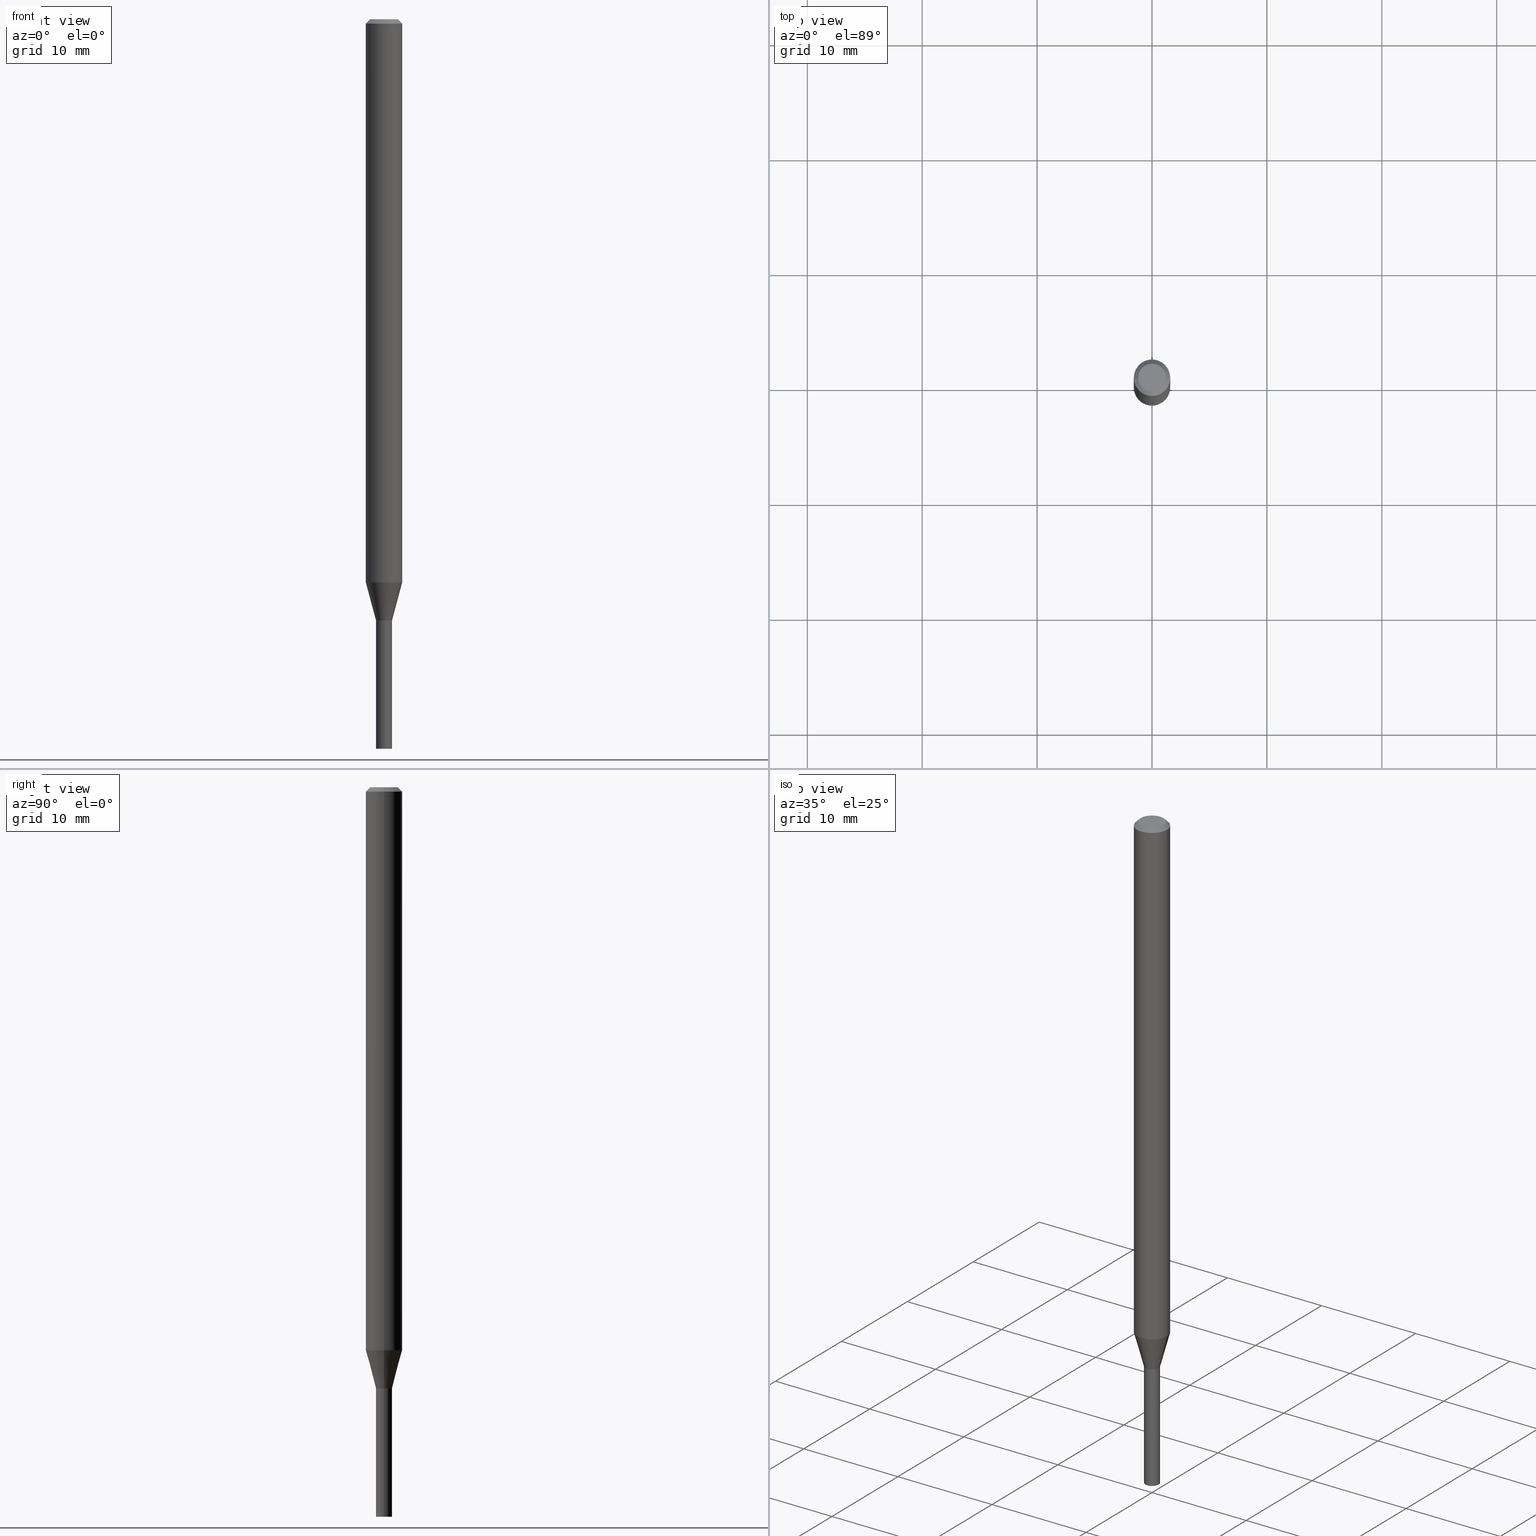
[diagram: canonical four-view strip — front | top / right | iso, engineering-drawing reading convention]
A machine part, canonical four-view strip (front | top / right | iso — engineering-drawing reading convention). The complete STEP part file that produces these views, byte-faithful:
ISO-10303-21;
HEADER;
FILE_DESCRIPTION (( 'STEP AP203' ),
    '1' );
FILE_NAME ('01266.STEP',
    '2024-03-20T00:46:00',
    ( '' ),
    ( '' ),
    'SwSTEP 2.0',
    'SolidWorks 2023',
    '' );
FILE_SCHEMA (( 'CONFIG_CONTROL_DESIGN' ));
ENDSEC;

DATA;
#1 = CIRCLE ( 'NONE', #59, 0.06250000000000000000 ) ;
#2 = VECTOR ( 'NONE', #380, 39.37007874015748854 ) ;
#3 = MECHANICAL_CONTEXT ( 'NONE', #54, 'mechanical' ) ;
#4 = ORIENTED_EDGE ( 'NONE', *, *, #236, .T. ) ;
#5 = EDGE_CURVE ( 'NONE', #119, #183, #333, .T. ) ;
#6 = VERTEX_POINT ( 'NONE', #157 ) ;
#7 = ADVANCED_FACE ( 'NONE', ( #159 ), #447, .T. ) ;
#8 = COORDINATED_UNIVERSAL_TIME_OFFSET ( 5, 0, .BEHIND. ) ;
#9 =( GEOMETRIC_REPRESENTATION_CONTEXT ( 3 ) GLOBAL_UNCERTAINTY_ASSIGNED_CONTEXT ( ( #31 ) ) GLOBAL_UNIT_ASSIGNED_CONTEXT ( ( #170, #98, #312 ) ) REPRESENTATION_CONTEXT ( 'NONE', 'WORKASPACE' ) );
#10 = CARTESIAN_POINT ( 'NONE',  ( 0.02750000000000000014, -1.920314736363723444E-16, 1.340948613343882413E-30 ) ) ;
#11 = LINE ( 'NONE', #269, #2 ) ;
#12 = DIRECTION ( 'NONE',  ( -2.445468806185136597E-29, 3.491481338843145583E-15, 1.000000000000000000 ) ) ;
#13 = EDGE_LOOP ( 'NONE', ( #294, #260, #41, #181 ) ) ;
#14 = CARTESIAN_POINT ( 'NONE',  ( -0.02750000000000000014, -7.765178200228343699E-15, -2.500000000000000000 ) ) ;
#15 = DIRECTION ( 'NONE',  ( -2.438088387897960049E-29, 3.491481338843145188E-15, 1.000000000000000000 ) ) ;
#16 = PERSON_AND_ORGANIZATION ( #432, #67 ) ;
#17 = AXIS2_PLACEMENT_3D ( 'NONE', #387, #247, #378 ) ;
#18 = APPROVAL_PERSON_ORGANIZATION ( #96, #381, #319 ) ;
#19 = ADVANCED_FACE ( 'NONE', ( #202 ), #384, .F. ) ;
#20 = LINE ( 'NONE', #446, #234 ) ;
#21 = DIRECTION ( 'NONE',  ( -2.445468806185136597E-29, 3.491481338843145583E-15, 1.000000000000000000 ) ) ;
#22 = FACE_OUTER_BOUND ( 'NONE', #153, .T. ) ;
#23 = FACE_OUTER_BOUND ( 'NONE', #221, .T. ) ;
#24 = CIRCLE ( 'NONE', #250, 0.02750000000000019790 ) ;
#25 = DIRECTION ( 'NONE',  ( 1.000000000000000000, -6.982962677686265133E-15, 0.000000000000000000 ) ) ;
#26 = CIRCLE ( 'NONE', #258, 0.06250000000000000000 ) ;
#27 = CARTESIAN_POINT ( 'NONE',  ( 3.668203209277705088E-31, -5.237222008264718399E-17, -0.01499999999999999944 ) ) ;
#28 = ADVANCED_FACE ( 'NONE', ( #316 ), #243, .F. ) ;
#29 = LINE ( 'NONE', #418, #206 ) ;
#30 = ORIENTED_EDGE ( 'NONE', *, *, #341, .T. ) ;
#31 = UNCERTAINTY_MEASURE_WITH_UNIT (LENGTH_MEASURE( 1.000000000000000082E-05 ), #170, 'distance_accuracy_value', 'NONE');
#32 = ORIENTED_EDGE ( 'NONE', *, *, #436, .F. ) ;
#33 = ORIENTED_EDGE ( 'NONE', *, *, #172, .T. ) ;
#34 = CIRCLE ( 'NONE', #84, 0.02750000000000020137 ) ;
#35 = CIRCLE ( 'NONE', #155, 0.02699999999999999969 ) ;
#36 = ORIENTED_EDGE ( 'NONE', *, *, #91, .F. ) ;
#37 = DIRECTION ( 'NONE',  ( 1.000000000000000000, -6.982962677686279332E-15, 0.000000000000000000 ) ) ;
#38 = ORIENTED_EDGE ( 'NONE', *, *, #73, .F. ) ;
#39 = EDGE_CURVE ( 'NONE', #407, #324, #347, .T. ) ;
#40 = CARTESIAN_POINT ( 'NONE',  ( -0.02750000000000019790, -6.995306565013429859E-15, -2.059500000000000330 ) ) ;
#41 = ORIENTED_EDGE ( 'NONE', *, *, #330, .T. ) ;
#42 = DIRECTION ( 'NONE',  ( 0.7071067811865454633, -7.319954787623246579E-15, -0.7071067811865493491 ) ) ;
#43 = AXIS2_PLACEMENT_3D ( 'NONE', #299, #226, #443 ) ;
#44 = DIRECTION ( 'NONE',  ( -2.445468806185136877E-29, 3.491481338843145188E-15, 1.000000000000000000 ) ) ;
#45 = CARTESIAN_POINT ( 'NONE',  ( -0.02699999999999999969, -6.997955792187541849E-15, -2.060000000000000497 ) ) ;
#46 = DIRECTION ( 'NONE',  ( 1.000000000000000000, -6.982962677686265922E-15, 4.876176775795935793E-29 ) ) ;
#47 = CARTESIAN_POINT ( 'NONE',  ( 0.02699999999999999969, -7.380991550314410545E-15, -2.060000000000000497 ) ) ;
#48 = PERSON_AND_ORGANIZATION_ROLE ( 'creator' ) ;
#49 = DIRECTION ( 'NONE',  ( -2.445468806185136597E-29, 3.491481338843145583E-15, 1.000000000000000000 ) ) ;
#50 = CIRCLE ( 'NONE', #17, 0.04749999999999999362 ) ;
#51 = AXIS2_PLACEMENT_3D ( 'NONE', #408, #371, #450 ) ;
#52 = CARTESIAN_POINT ( 'NONE',  ( 0.02750000000000000014, -7.384483031653253552E-15, -2.060000000000000053 ) ) ;
#53 = DIRECTION ( 'NONE',  ( 1.000000000000000000, -6.982962677686264344E-15, 0.000000000000000000 ) ) ;
#54 = APPLICATION_CONTEXT ( 'configuration controlled 3d designs of mechanical parts and assemblies' ) ;
#55 = CARTESIAN_POINT ( 'NONE',  ( 0.06250000000000000000, -7.172823224113832982E-15, -1.929378221735090548 ) ) ;
#56 = EDGE_CURVE ( 'NONE', #393, #268, #355, .T. ) ;
#57 = DIRECTION ( 'NONE',  ( 1.000000000000000000, -6.982962677686266711E-15, 0.000000000000000000 ) ) ;
#58 = DIRECTION ( 'NONE',  ( 1.000000000000000000, -6.982962677686265133E-15, 0.000000000000000000 ) ) ;
#59 = AXIS2_PLACEMENT_3D ( 'NONE', #173, #351, #131 ) ;
#60 = AXIS2_PLACEMENT_3D ( 'NONE', #167, #311, #454 ) ;
#61 = DIRECTION ( 'NONE',  ( -2.445468806185136597E-29, 3.491481338843145583E-15, 1.000000000000000000 ) ) ;
#62 = VECTOR ( 'NONE', #42, 39.37007874015748854 ) ;
#63 = CARTESIAN_POINT ( 'NONE',  ( 3.316907271900976096E-16, 0.04749999999999999362, -1.231061139556668131E-16 ) ) ;
#64 = EDGE_CURVE ( 'NONE', #324, #219, #24, .T. ) ;
#65 = DIRECTION ( 'NONE',  ( -2.445468806185136597E-29, 3.491481338843145583E-15, 1.000000000000000000 ) ) ;
#66 = ORIENTED_EDGE ( 'NONE', *, *, #315, .T. ) ;
#67 = ORGANIZATION ( 'UNSPECIFIED', 'UNSPECIFIED', '' ) ;
#68 = CARTESIAN_POINT ( 'NONE',  ( 5.037665740741382466E-29, -7.192451558016881849E-15, -2.060000000000000497 ) ) ;
#69 = ORIENTED_EDGE ( 'NONE', *, *, #178, .T. ) ;
#70 = EDGE_CURVE ( 'NONE', #145, #195, #50, .T. ) ;
#71 = PERSON_AND_ORGANIZATION ( #432, #67 ) ;
#72 = ORIENTED_EDGE ( 'NONE', *, *, #151, .T. ) ;
#73 = EDGE_CURVE ( 'NONE', #393, #119, #462, .T. ) ;
#74 = ORIENTED_EDGE ( 'NONE', *, *, #436, .T. ) ;
#75 = AXIS2_PLACEMENT_3D ( 'NONE', #314, #286, #208 ) ;
#76 = CIRCLE ( 'NONE', #439, 0.04749999999999999362 ) ;
#77 = APPROVAL ( #301, 'UNSPECIFIED' ) ;
#78 = EDGE_LOOP ( 'NONE', ( #82, #66, #72, #232 ) ) ;
#79 = ORIENTED_EDGE ( 'NONE', *, *, #64, .F. ) ;
#80 = CARTESIAN_POINT ( 'NONE',  ( 0.000000000000000000, 0.000000000000000000, 0.000000000000000000 ) ) ;
#81 = CARTESIAN_POINT ( 'NONE',  ( 0.04749999999999999362, -4.035134999187576651E-16, 8.547849927876775510E-17 ) ) ;
#82 = ORIENTED_EDGE ( 'NONE', *, *, #210, .F. ) ;
#83 = FACE_OUTER_BOUND ( 'NONE', #404, .T. ) ;
#84 = AXIS2_PLACEMENT_3D ( 'NONE', #141, #21, #53 ) ;
#85 = LOCAL_TIME ( 20, 46, 0.000000000000000000, #8 ) ;
#86 = LOCAL_TIME ( 20, 46, 0.000000000000000000, #354 ) ;
#87 = DIRECTION ( 'NONE',  ( -2.445468806185136597E-29, 3.491481338843145583E-15, 1.000000000000000000 ) ) ;
#88 = CYLINDRICAL_SURFACE ( 'NONE', #369, 0.06250000000000000000 ) ;
#89 = CC_DESIGN_PERSON_AND_ORGANIZATION_ASSIGNMENT ( #251, #460, ( #148 ) ) ;
#90 = CARTESIAN_POINT ( 'NONE',  ( 1.920314736364227082E-16, 0.02749999999999280798, -2.060000000000000053 ) ) ;
#91 = EDGE_CURVE ( 'NONE', #407, #6, #34, .T. ) ;
#92 = CIRCLE ( 'NONE', #343, 0.02750000000000000014 ) ;
#93 = DIRECTION ( 'NONE',  ( -2.445468806185136877E-29, 3.491481338843145188E-15, 1.000000000000000000 ) ) ;
#94 = FACE_OUTER_BOUND ( 'NONE', #291, .T. ) ;
#95 = DIRECTION ( 'NONE',  ( -0.7071067811865656694, 7.493145998870420424E-15, 0.7071067811865294761 ) ) ;
#96 = PERSON_AND_ORGANIZATION ( #432, #67 ) ;
#97 = DIRECTION ( 'NONE',  ( 2.438088387897960049E-29, -3.491481338843145188E-15, -1.000000000000000000 ) ) ;
#98 =( NAMED_UNIT ( * ) PLANE_ANGLE_UNIT ( ) SI_UNIT ( $, .RADIAN. ) );
#99 = AXIS2_PLACEMENT_3D ( 'NONE', #309, #165, #58 ) ;
#100 = AXIS2_PLACEMENT_3D ( 'NONE', #197, #15, #162 ) ;
#101 = CARTESIAN_POINT ( 'NONE',  ( 0.02750000000000020137, -1.920314736363737496E-16, 1.340948613343892222E-30 ) ) ;
#102 = CARTESIAN_POINT ( 'NONE',  ( 0.000000000000000000, 0.000000000000000000, 0.000000000000000000 ) ) ;
#103 = DIRECTION ( 'NONE',  ( 0.000000000000000000, 0.000000000000000000, 1.000000000000000000 ) ) ;
#104 = APPLICATION_CONTEXT ( 'configuration controlled 3d designs of mechanical parts and assemblies' ) ;
#105 = CC_DESIGN_PERSON_AND_ORGANIZATION_ASSIGNMENT ( #267, #121, ( #239 ) ) ;
#106 = EDGE_LOOP ( 'NONE', ( #400, #142 ) ) ;
#107 = EDGE_LOOP ( 'NONE', ( #356, #69, #263, #295 ) ) ;
#108 = PRODUCT_RELATED_PRODUCT_CATEGORY ( 'detail', '', ( #306 ) ) ;
#109 = AXIS2_PLACEMENT_3D ( 'NONE', #422, #139, #283 ) ;
#110 = EDGE_LOOP ( 'NONE', ( #257, #152, #338, #146 ) ) ;
#111 = VERTEX_POINT ( 'NONE', #416 ) ;
#112 = EDGE_CURVE ( 'NONE', #364, #288, #29, .T. ) ;
#113 = CC_DESIGN_PERSON_AND_ORGANIZATION_ASSIGNMENT ( #71, #189, ( #306 ) ) ;
#114 = ORIENTED_EDGE ( 'NONE', *, *, #229, .F. ) ;
#115 = CONICAL_SURFACE ( 'NONE', #377, 0.02750000000000020137, 0.2617993877991505181 ) ;
#116 = CIRCLE ( 'NONE', #245, 0.02750000000000020137 ) ;
#117 = ORIENTED_EDGE ( 'NONE', *, *, #376, .F. ) ;
#118 = CALENDAR_DATE ( 2024, 19, 3 ) ;
#119 = VERTEX_POINT ( 'NONE', #278 ) ;
#120 = DIRECTION ( 'NONE',  ( 0.2588190451025217942, 1.565188264969618812E-15, 0.9659258262890679791 ) ) ;
#121 = PERSON_AND_ORGANIZATION_ROLE ( 'creator' ) ;
#122 = ORIENTED_EDGE ( 'NONE', *, *, #449, .T. ) ;
#123 = DIRECTION ( 'NONE',  ( -2.445468806185136597E-29, 3.491481338843145583E-15, 1.000000000000000000 ) ) ;
#124 = CIRCLE ( 'NONE', #99, 0.02750000000000019790 ) ;
#125 = AXIS2_PLACEMENT_3D ( 'NONE', #233, #123, #415 ) ;
#126 = CARTESIAN_POINT ( 'NONE',  ( -0.06250000000000000000, -6.292298846908378697E-15, -1.929378221735090548 ) ) ;
#127 = EDGE_CURVE ( 'NONE', #215, #364, #1, .T. ) ;
#128 = CARTESIAN_POINT ( 'NONE',  ( 5.037665740741381905E-29, -7.192451558016880271E-15, -2.060000000000000053 ) ) ;
#129 = EDGE_CURVE ( 'NONE', #219, #324, #124, .T. ) ;
#130 = FACE_OUTER_BOUND ( 'NONE', #190, .T. ) ;
#131 = DIRECTION ( 'NONE',  ( 1.000000000000000000, -6.982962677686262766E-15, 0.000000000000000000 ) ) ;
#132 = CC_DESIGN_APPROVAL ( #77, ( #239 ) ) ;
#133 = LINE ( 'NONE', #279, #296 ) ;
#134 = LINE ( 'NONE', #284, #417 ) ;
#135 = COORDINATED_UNIVERSAL_TIME_OFFSET ( 5, 0, .BEHIND. ) ;
#136 = CC_DESIGN_PERSON_AND_ORGANIZATION_ASSIGNMENT ( #16, #48, ( #352 ) ) ;
#137 = DIRECTION ( 'NONE',  ( -2.445468806185136877E-29, 3.491481338843145188E-15, 1.000000000000000000 ) ) ;
#138 = PERSON_AND_ORGANIZATION_ROLE ( 'design_supplier' ) ;
#139 = DIRECTION ( 'NONE',  ( -2.445468806185136597E-29, 3.491481338843145583E-15, 1.000000000000000000 ) ) ;
#140 = SHAPE_DEFINITION_REPRESENTATION ( #241, #458 ) ;
#141 = CARTESIAN_POINT ( 'NONE',  ( 5.037665740741380784E-29, -7.192451558016878693E-15, -2.060000000000000053 ) ) ;
#142 = ORIENTED_EDGE ( 'NONE', *, *, #210, .T. ) ;
#143 = DIRECTION ( 'NONE',  ( 1.000000000000000000, -6.982962677686262766E-15, 0.000000000000000000 ) ) ;
#144 = ADVANCED_FACE ( 'NONE', ( #23 ), #200, .F. ) ;
#145 = VERTEX_POINT ( 'NONE', #452 ) ;
#146 = ORIENTED_EDGE ( 'NONE', *, *, #236, .F. ) ;
#147 = VECTOR ( 'NONE', #44, 39.37007874015748143 ) ;
#148 = SECURITY_CLASSIFICATION ( '', '', #287 ) ;
#149 = EDGE_LOOP ( 'NONE', ( #270, #38 ) ) ;
#150 = ADVANCED_FACE ( 'NONE', ( #318 ), #115, .T. ) ;
#151 = EDGE_CURVE ( 'NONE', #288, #111, #264, .T. ) ;
#152 = ORIENTED_EDGE ( 'NONE', *, *, #73, .T. ) ;
#153 = EDGE_LOOP ( 'NONE', ( #122, #261, #32, #179 ) ) ;
#154 = DIRECTION ( 'NONE',  ( 1.000000000000000000, -6.982962677686261189E-15, 0.000000000000000000 ) ) ;
#155 = AXIS2_PLACEMENT_3D ( 'NONE', #365, #49, #164 ) ;
#156 = DATE_AND_TIME ( #403, #85 ) ;
#157 = CARTESIAN_POINT ( 'NONE',  ( -0.02750000000000020137, -6.644675576295614636E-15, -2.060000000000000053 ) ) ;
#158 = CARTESIAN_POINT ( 'NONE',  ( -0.02750000000000000014, -7.765178200228343699E-15, -2.060000000000000053 ) ) ;
#159 = FACE_OUTER_BOUND ( 'NONE', #78, .T. ) ;
#160 = ADVANCED_FACE ( 'NONE', ( #349 ), #207, .T. ) ;
#161 = DIRECTION ( 'NONE',  ( -1.000000000000000000, 6.982962677686265922E-15, -4.876176775795935793E-29 ) ) ;
#162 = DIRECTION ( 'NONE',  ( 1.000000000000000000, -6.982962677686265922E-15, 4.876176775795935793E-29 ) ) ;
#163 = CONICAL_SURFACE ( 'NONE', #320, 0.02750000000000020137, 0.2617993877991505181 ) ;
#164 = DIRECTION ( 'NONE',  ( 1.000000000000000000, -6.982962677686261189E-15, 0.000000000000000000 ) ) ;
#165 = DIRECTION ( 'NONE',  ( -2.445468806185136597E-29, 3.491481338843145583E-15, 1.000000000000000000 ) ) ;
#166 = DIRECTION ( 'NONE',  ( -2.445468806185136877E-29, 3.491481338843145188E-15, 1.000000000000000000 ) ) ;
#167 = CARTESIAN_POINT ( 'NONE',  ( 3.668203209277705088E-31, -5.237222008264718399E-17, -0.01499999999999999944 ) ) ;
#168 = AXIS2_PLACEMENT_3D ( 'NONE', #102, #103, #214 ) ;
#169 = CARTESIAN_POINT ( 'NONE',  ( 6.113672015462842613E-29, -8.728703347107864943E-15, -2.500000000000000000 ) ) ;
#170 =( CONVERSION_BASED_UNIT ( 'INCH', #350 ) LENGTH_UNIT ( ) NAMED_UNIT ( #399 ) );
#171 = CARTESIAN_POINT ( 'NONE',  ( -0.06250000000000000000, 4.440892098500626162E-16, -3.074334431409316114E-30 ) ) ;
#172 = EDGE_CURVE ( 'NONE', #360, #219, #133, .T. ) ;
#173 = CARTESIAN_POINT ( 'NONE',  ( 4.718234256586113509E-29, -6.736388056758440524E-15, -1.929378221735090548 ) ) ;
#174 = DATE_TIME_ROLE ( 'classification_date' ) ;
#175 = AXIS2_PLACEMENT_3D ( 'NONE', #27, #246, #57 ) ;
#176 = ORIENTED_EDGE ( 'NONE', *, *, #229, .T. ) ;
#177 = AXIS2_PLACEMENT_3D ( 'NONE', #194, #235, #46 ) ;
#178 = EDGE_CURVE ( 'NONE', #215, #111, #457, .T. ) ;
#179 = ORIENTED_EDGE ( 'NONE', *, *, #5, .F. ) ;
#180 = APPROVAL_STATUS ( 'not_yet_approved' ) ;
#181 = ORIENTED_EDGE ( 'NONE', *, *, #127, .F. ) ;
#182 = EDGE_CURVE ( 'NONE', #364, #215, #26, .T. ) ;
#183 = VERTEX_POINT ( 'NONE', #52 ) ;
#184 = CLOSED_SHELL ( 'NONE', ( #144, #370, #7, #427, #198, #150, #266, #160, #19, #204, #373, #28 ) ) ;
#185 = DIRECTION ( 'NONE',  ( 1.000000000000000000, -6.982962677686264344E-15, 0.000000000000000000 ) ) ;
#186 = CIRCLE ( 'NONE', #252, 0.02699999999999999969 ) ;
#187 = CYLINDRICAL_SURFACE ( 'NONE', #379, 0.02750000000000000014 ) ;
#188 = ORIENTED_EDGE ( 'NONE', *, *, #129, .F. ) ;
#189 = PERSON_AND_ORGANIZATION_ROLE ( 'design_owner' ) ;
#190 = EDGE_LOOP ( 'NONE', ( #176, #33, #79, #363 ) ) ;
#191 = CLOSED_SHELL ( 'NONE', ( #282, #434, #238, #413 ) ) ;
#192 = LINE ( 'NONE', #344, #62 ) ;
#193 = CONICAL_SURFACE ( 'NONE', #125, 0.02699999999999999969, 0.7853981633974739252 ) ;
#194 = CARTESIAN_POINT ( 'NONE',  ( 5.037665740741382466E-29, -7.192451558016881849E-15, -2.060000000000000497 ) ) ;
#195 = VERTEX_POINT ( 'NONE', #81 ) ;
#196 = LINE ( 'NONE', #47, #297 ) ;
#197 = CARTESIAN_POINT ( 'NONE',  ( 6.194428952736783458E-29, -8.613054816532157721E-15, -2.500000000000000000 ) ) ;
#198 = ADVANCED_FACE ( 'NONE', ( #218 ), #163, .T. ) ;
#199 = DIRECTION ( 'NONE',  ( 1.000000000000000000, -6.982962677686266711E-15, 0.000000000000000000 ) ) ;
#200 = CYLINDRICAL_SURFACE ( 'NONE', #75, 0.02750000000000020137 ) ;
#201 = CARTESIAN_POINT ( 'NONE',  ( 0.000000000000000000, 0.000000000000000000, 0.000000000000000000 ) ) ;
#202 = FACE_OUTER_BOUND ( 'NONE', #106, .T. ) ;
#203 = DIRECTION ( 'NONE',  ( -2.445468806185136877E-29, 3.491481338843145188E-15, 1.000000000000000000 ) ) ;
#204 = ADVANCED_FACE ( 'NONE', ( #94 ), #383, .F. ) ;
#205 = DATE_AND_TIME ( #280, #86 ) ;
#206 = VECTOR ( 'NONE', #93, 39.37007874015748143 ) ;
#207 = CONICAL_SURFACE ( 'NONE', #60, 0.06250000000000000000, 0.7853981633974456145 ) ;
#208 = DIRECTION ( 'NONE',  ( 1.000000000000000000, -6.982962677686266711E-15, 4.876176775795935793E-29 ) ) ;
#209 = DIRECTION ( 'NONE',  ( 1.000000000000000000, -6.982962677686244622E-15, 0.000000000000000000 ) ) ;
#210 = EDGE_CURVE ( 'NONE', #195, #145, #76, .T. ) ;
#211 = ORIENTED_EDGE ( 'NONE', *, *, #346, .T. ) ;
#212 = CC_DESIGN_DATE_AND_TIME_ASSIGNMENT ( #156, #220, ( #239 ) ) ;
#213 = DIRECTION ( 'NONE',  ( 1.000000000000000000, -6.982962677686244622E-15, 0.000000000000000000 ) ) ;
#214 = DIRECTION ( 'NONE',  ( 1.000000000000000000, 0.000000000000000000, 0.000000000000000000 ) ) ;
#215 = VERTEX_POINT ( 'NONE', #126 ) ;
#216 = DIRECTION ( 'NONE',  ( 1.000000000000000000, -6.982962677686266711E-15, 4.876176775795935793E-29 ) ) ;
#217 = COORDINATED_UNIVERSAL_TIME_OFFSET ( 5, 0, .BEHIND. ) ;
#218 = FACE_OUTER_BOUND ( 'NONE', #464, .T. ) ;
#219 = VERTEX_POINT ( 'NONE', #40 ) ;
#220 = DATE_TIME_ROLE ( 'creation_date' ) ;
#221 = EDGE_LOOP ( 'NONE', ( #445, #272, #323, #293 ) ) ;
#222 = APPLICATION_PROTOCOL_DEFINITION ( 'international standard', 'config_control_design', 1994, #104 ) ;
#223 = ORIENTED_EDGE ( 'NONE', *, *, #398, .T. ) ;
#224 = AXIS2_PLACEMENT_3D ( 'NONE', #444, #342, #276 ) ;
#225 = APPROVAL_ROLE ( '' ) ;
#226 = DIRECTION ( 'NONE',  ( 2.445468806185136597E-29, -3.491481338843145583E-15, -1.000000000000000000 ) ) ;
#227 = DIRECTION ( 'NONE',  ( -2.445468806185136597E-29, 3.491481338843145583E-15, 1.000000000000000000 ) ) ;
#228 = ORIENTED_EDGE ( 'NONE', *, *, #64, .T. ) ;
#229 = EDGE_CURVE ( 'NONE', #395, #360, #186, .T. ) ;
#230 = DIRECTION ( 'NONE',  ( 1.000000000000000000, -6.982962677686266711E-15, 4.876176775795935793E-29 ) ) ;
#231 = COORDINATED_UNIVERSAL_TIME_OFFSET ( 5, 0, .BEHIND. ) ;
#232 = ORIENTED_EDGE ( 'NONE', *, *, #346, .F. ) ;
#233 = CARTESIAN_POINT ( 'NONE',  ( 5.037665740741382466E-29, -7.192451558016881849E-15, -2.060000000000000497 ) ) ;
#234 = VECTOR ( 'NONE', #120, 39.37007874015748143 ) ;
#235 = DIRECTION ( 'NONE',  ( -2.438088387897960049E-29, 3.491481338843145188E-15, 1.000000000000000000 ) ) ;
#236 = EDGE_CURVE ( 'NONE', #268, #183, #424, .T. ) ;
#237 = FACE_OUTER_BOUND ( 'NONE', #149, .T. ) ;
#238 = ADVANCED_FACE ( 'NONE', ( #402 ), #187, .T. ) ;
#239 = PRODUCT_DEFINITION ( 'UNKNOWN', '', #352, #412 ) ;
#240 = DATE_AND_TIME ( #275, #455 ) ;
#241 = PRODUCT_DEFINITION_SHAPE ( 'NONE', 'NONE',  #239 ) ;
#242 = CARTESIAN_POINT ( 'NONE',  ( 0.06250000000000000000, -4.888073874380388472E-16, -0.01499999999999999944 ) ) ;
#243 = CYLINDRICAL_SURFACE ( 'NONE', #109, 0.02750000000000020137 ) ;
#244 = DIRECTION ( 'NONE',  ( 2.438088387897960049E-29, -3.491481338843145188E-15, -1.000000000000000000 ) ) ;
#245 = AXIS2_PLACEMENT_3D ( 'NONE', #405, #303, #273 ) ;
#246 = DIRECTION ( 'NONE',  ( -2.445468806185136597E-29, 3.491481338843145583E-15, 1.000000000000000000 ) ) ;
#247 = DIRECTION ( 'NONE',  ( -2.445468806185136597E-29, 3.491481338843145583E-15, 1.000000000000000000 ) ) ;
#248 = DIRECTION ( 'NONE',  ( -2.445468806185136597E-29, 3.491481338843145583E-15, 1.000000000000000000 ) ) ;
#249 = EDGE_CURVE ( 'NONE', #6, #219, #396, .T. ) ;
#250 = AXIS2_PLACEMENT_3D ( 'NONE', #253, #390, #25 ) ;
#251 = PERSON_AND_ORGANIZATION ( #432, #67 ) ;
#252 = AXIS2_PLACEMENT_3D ( 'NONE', #68, #262, #154 ) ;
#253 = CARTESIAN_POINT ( 'NONE',  ( 5.036443006338289664E-29, -7.190705817347457979E-15, -2.059500000000000330 ) ) ;
#254 = DIRECTION ( 'NONE',  ( -2.445468806185136597E-29, 3.491481338843145583E-15, 1.000000000000000000 ) ) ;
#255 = DIRECTION ( 'NONE',  ( -2.445468806185136597E-29, 3.491481338843145583E-15, 1.000000000000000000 ) ) ;
#256 = ORIENTED_EDGE ( 'NONE', *, *, #172, .F. ) ;
#257 = ORIENTED_EDGE ( 'NONE', *, *, #56, .F. ) ;
#258 = AXIS2_PLACEMENT_3D ( 'NONE', #281, #248, #143 ) ;
#259 = CARTESIAN_POINT ( 'NONE',  ( 0.000000000000000000, 0.000000000000000000, 0.000000000000000000 ) ) ;
#260 = ORIENTED_EDGE ( 'NONE', *, *, #419, .T. ) ;
#261 = ORIENTED_EDGE ( 'NONE', *, *, #56, .T. ) ;
#262 = DIRECTION ( 'NONE',  ( -2.445468806185136597E-29, 3.491481338843145583E-15, 1.000000000000000000 ) ) ;
#263 = ORIENTED_EDGE ( 'NONE', *, *, #151, .F. ) ;
#264 = CIRCLE ( 'NONE', #175, 0.06250000000000000000 ) ;
#265 = VECTOR ( 'NONE', #137, 39.37007874015748143 ) ;
#266 = ADVANCED_FACE ( 'NONE', ( #414 ), #88, .T. ) ;
#267 = PERSON_AND_ORGANIZATION ( #432, #67 ) ;
#268 = VERTEX_POINT ( 'NONE', #158 ) ;
#269 = CARTESIAN_POINT ( 'NONE',  ( -0.06250000000000000000, 3.840629472727444916E-16, -0.01499999999999999944 ) ) ;
#270 = ORIENTED_EDGE ( 'NONE', *, *, #449, .F. ) ;
#271 = DIRECTION ( 'NONE',  ( -2.445468806185136597E-29, 3.491481338843145583E-15, 1.000000000000000000 ) ) ;
#272 = ORIENTED_EDGE ( 'NONE', *, *, #249, .T. ) ;
#273 = DIRECTION ( 'NONE',  ( 1.000000000000000000, -6.982962677686264344E-15, 0.000000000000000000 ) ) ;
#274 = AXIS2_PLACEMENT_3D ( 'NONE', #441, #289, #37 ) ;
#275 = CALENDAR_DATE ( 2024, 19, 3 ) ;
#276 = DIRECTION ( 'NONE',  ( 1.000000000000000000, -6.982962677686266711E-15, 4.876176775795935793E-29 ) ) ;
#277 = CARTESIAN_POINT ( 'NONE',  ( 0.02699999999999999969, -7.380991550314410545E-15, -2.060000000000000497 ) ) ;
#278 = CARTESIAN_POINT ( 'NONE',  ( 0.02750000000000000014, -8.920734820744236646E-15, -2.500000000000000000 ) ) ;
#279 = CARTESIAN_POINT ( 'NONE',  ( -0.02699999999999999969, -7.000605019361653839E-15, -2.060000000000000497 ) ) ;
#280 = CALENDAR_DATE ( 2024, 19, 3 ) ;
#281 = CARTESIAN_POINT ( 'NONE',  ( 4.718234256586113509E-29, -6.736388056758440524E-15, -1.929378221735090548 ) ) ;
#282 = ADVANCED_FACE ( 'NONE', ( #22 ), #307, .T. ) ;
#283 = DIRECTION ( 'NONE',  ( 1.000000000000000000, -6.982962677686266711E-15, 4.876176775795935793E-29 ) ) ;
#284 = CARTESIAN_POINT ( 'NONE',  ( -0.02750000000000020137, -6.997052305682850574E-15, -2.060000000000000053 ) ) ;
#285 = CIRCLE ( 'NONE', #358, 0.02750000000000000014 ) ;
#286 = DIRECTION ( 'NONE',  ( -2.445468806185136597E-29, 3.491481338843145583E-15, 1.000000000000000000 ) ) ;
#287 = SECURITY_CLASSIFICATION_LEVEL ( 'unclassified' ) ;
#288 = VERTEX_POINT ( 'NONE', #242 ) ;
#289 = DIRECTION ( 'NONE',  ( -2.445468806185136597E-29, 3.491481338843145583E-15, 1.000000000000000000 ) ) ;
#290 = AXIS2_PLACEMENT_3D ( 'NONE', #169, #461, #209 ) ;
#291 = EDGE_LOOP ( 'NONE', ( #114, #329 ) ) ;
#292 = AXIS2_PLACEMENT_3D ( 'NONE', #300, #453, #199 ) ;
#293 = ORIENTED_EDGE ( 'NONE', *, *, #39, .F. ) ;
#294 = ORIENTED_EDGE ( 'NONE', *, *, #456, .F. ) ;
#295 = ORIENTED_EDGE ( 'NONE', *, *, #112, .F. ) ;
#296 = VECTOR ( 'NONE', #95, 39.37007874015748143 ) ;
#297 = VECTOR ( 'NONE', #305, 39.37007874015748143 ) ;
#298 = PERSON_AND_ORGANIZATION ( #432, #67 ) ;
#299 = CARTESIAN_POINT ( 'NONE',  ( 3.668203209277705088E-31, -5.237222008264718399E-17, -0.01499999999999999944 ) ) ;
#300 = CARTESIAN_POINT ( 'NONE',  ( 3.668203209277705088E-31, -5.237222008264718399E-17, -0.01499999999999999944 ) ) ;
#301 = APPROVAL_STATUS ( 'not_yet_approved' ) ;
#302 = ORIENTED_EDGE ( 'NONE', *, *, #91, .T. ) ;
#303 = DIRECTION ( 'NONE',  ( -2.445468806185136597E-29, 3.491481338843145583E-15, 1.000000000000000000 ) ) ;
#304 = AXIS2_PLACEMENT_3D ( 'NONE', #80, #87, #230 ) ;
#305 = DIRECTION ( 'NONE',  ( 0.7071067811865656694, -2.468850131082446387E-15, 0.7071067811865294761 ) ) ;
#306 = PRODUCT ( '01266', '01266', '', ( #3 ) ) ;
#307 = CYLINDRICAL_SURFACE ( 'NONE', #224, 0.02750000000000000014 ) ;
#308 = CC_DESIGN_DATE_AND_TIME_ASSIGNMENT ( #205, #174, ( #148 ) ) ;
#309 = CARTESIAN_POINT ( 'NONE',  ( 5.036443006338289664E-29, -7.190705817347457979E-15, -2.059500000000000330 ) ) ;
#310 = FACE_OUTER_BOUND ( 'NONE', #430, .T. ) ;
#311 = DIRECTION ( 'NONE',  ( 2.445468806185136597E-29, -3.491481338843145583E-15, -1.000000000000000000 ) ) ;
#312 =( NAMED_UNIT ( * ) SI_UNIT ( $, .STERADIAN. ) SOLID_ANGLE_UNIT ( ) );
#313 = CC_DESIGN_APPROVAL ( #386, ( #352 ) ) ;
#314 = CARTESIAN_POINT ( 'NONE',  ( 0.000000000000000000, 0.000000000000000000, 0.000000000000000000 ) ) ;
#315 = EDGE_CURVE ( 'NONE', #195, #288, #192, .T. ) ;
#316 = FACE_OUTER_BOUND ( 'NONE', #328, .T. ) ;
#317 = PERSON_AND_ORGANIZATION ( #432, #67 ) ;
#318 = FACE_OUTER_BOUND ( 'NONE', #13, .T. ) ;
#319 = APPROVAL_ROLE ( '' ) ;
#320 = AXIS2_PLACEMENT_3D ( 'NONE', #332, #254, #185 ) ;
#321 =( LENGTH_UNIT ( ) NAMED_UNIT ( * ) SI_UNIT ( $, .METRE. ) );
#322 = DATE_AND_TIME ( #465, #345 ) ;
#323 = ORIENTED_EDGE ( 'NONE', *, *, #129, .T. ) ;
#324 = VERTEX_POINT ( 'NONE', #375 ) ;
#325 = AXIS2_PLACEMENT_3D ( 'NONE', #63, #97, #420 ) ;
#326 = APPROVAL_STATUS ( 'not_yet_approved' ) ;
#327 = CONICAL_SURFACE ( 'NONE', #51, 0.02699999999999999969, 0.7853981633974739252 ) ;
#328 = EDGE_LOOP ( 'NONE', ( #367, #36, #463, #228 ) ) ;
#329 = ORIENTED_EDGE ( 'NONE', *, *, #341, .F. ) ;
#330 = EDGE_CURVE ( 'NONE', #407, #364, #20, .T. ) ;
#331 = ORIENTED_EDGE ( 'NONE', *, *, #112, .T. ) ;
#332 = CARTESIAN_POINT ( 'NONE',  ( 5.037665740741380784E-29, -7.192451558016878693E-15, -2.060000000000000053 ) ) ;
#333 = LINE ( 'NONE', #10, #147 ) ;
#334 = LOCAL_TIME ( 20, 46, 0.000000000000000000, #231 ) ;
#335 = CC_DESIGN_SECURITY_CLASSIFICATION ( #148, ( #352 ) ) ;
#336 = PLANE ( 'NONE',  #410 ) ;
#337 = CARTESIAN_POINT ( 'NONE',  ( -2.090350035857389078E-45, 2.984465851041258834E-31, 8.547849927876517898E-17 ) ) ;
#338 = ORIENTED_EDGE ( 'NONE', *, *, #5, .T. ) ;
#339 = CARTESIAN_POINT ( 'NONE',  ( 0.02750000000000020137, -7.384483031653253552E-15, -2.060000000000000053 ) ) ;
#340 = DIRECTION ( 'NONE',  ( 1.000000000000000000, -6.982962677686267499E-15, 4.884662768193073002E-29 ) ) ;
#341 = EDGE_CURVE ( 'NONE', #360, #395, #35, .T. ) ;
#342 = DIRECTION ( 'NONE',  ( -2.445468806185136597E-29, 3.491481338843145583E-15, 1.000000000000000000 ) ) ;
#343 = AXIS2_PLACEMENT_3D ( 'NONE', #128, #255, #385 ) ;
#344 = CARTESIAN_POINT ( 'NONE',  ( 0.06250000000000000000, -4.811533449433679005E-16, -0.01499999999999999944 ) ) ;
#345 = LOCAL_TIME ( 20, 46, 0.000000000000000000, #217 ) ;
#346 = EDGE_CURVE ( 'NONE', #145, #111, #11, .T. ) ;
#347 = LINE ( 'NONE', #101, #368 ) ;
#348 = CYLINDRICAL_SURFACE ( 'NONE', #304, 0.06250000000000000000 ) ;
#349 = FACE_OUTER_BOUND ( 'NONE', #440, .T. ) ;
#350 = LENGTH_MEASURE_WITH_UNIT ( LENGTH_MEASURE( 0.02539999999999999897 ), #321 );
#351 = DIRECTION ( 'NONE',  ( -2.445468806185136597E-29, 3.491481338843145583E-15, 1.000000000000000000 ) ) ;
#352 = PRODUCT_DEFINITION_FORMATION_WITH_SPECIFIED_SOURCE ( 'ANY', '', #306, .NOT_KNOWN. ) ;
#353 = CARTESIAN_POINT ( 'NONE',  ( 5.037665740741380784E-29, -7.192451558016878693E-15, -2.060000000000000053 ) ) ;
#354 = COORDINATED_UNIVERSAL_TIME_OFFSET ( 5, 0, .BEHIND. ) ;
#355 = LINE ( 'NONE', #382, #423 ) ;
#356 = ORIENTED_EDGE ( 'NONE', *, *, #182, .T. ) ;
#357 = DIRECTION ( 'NONE',  ( -0.2588190451025217942, 5.211531920934552619E-15, 0.9659258262890679791 ) ) ;
#358 = AXIS2_PLACEMENT_3D ( 'NONE', #392, #65, #213 ) ;
#359 = EDGE_LOOP ( 'NONE', ( #409, #401, #331, #117 ) ) ;
#360 = VERTEX_POINT ( 'NONE', #45 ) ;
#361 = CARTESIAN_POINT ( 'NONE',  ( -0.02750000000000020137, 1.953992523340289819E-16, -1.352707149820108990E-30 ) ) ;
#362 = ORIENTED_EDGE ( 'NONE', *, *, #376, .T. ) ;
#363 = ORIENTED_EDGE ( 'NONE', *, *, #398, .F. ) ;
#364 = VERTEX_POINT ( 'NONE', #55 ) ;
#365 = CARTESIAN_POINT ( 'NONE',  ( 5.037665740741382466E-29, -7.192451558016881849E-15, -2.060000000000000497 ) ) ;
#366 = DATE_AND_TIME ( #118, #334 ) ;
#367 = ORIENTED_EDGE ( 'NONE', *, *, #249, .F. ) ;
#368 = VECTOR ( 'NONE', #459, 39.37007874015748143 ) ;
#369 = AXIS2_PLACEMENT_3D ( 'NONE', #201, #271, #451 ) ;
#370 = ADVANCED_FACE ( 'NONE', ( #130 ), #193, .T. ) ;
#371 = DIRECTION ( 'NONE',  ( -2.445468806185136597E-29, 3.491481338843145583E-15, 1.000000000000000000 ) ) ;
#372 = PLANE ( 'NONE',  #100 ) ;
#373 = ADVANCED_FACE ( 'NONE', ( #310 ), #327, .T. ) ;
#374 = APPROVAL_DATE_TIME ( #240, #386 ) ;
#375 = CARTESIAN_POINT ( 'NONE',  ( 0.02750000000000019790, -7.382737290983832837E-15, -2.059500000000000330 ) ) ;
#376 = EDGE_CURVE ( 'NONE', #111, #288, #389, .T. ) ;
#377 = AXIS2_PLACEMENT_3D ( 'NONE', #353, #61, #426 ) ;
#378 = DIRECTION ( 'NONE',  ( 1.000000000000000000, -6.982962677686267499E-15, 4.884662768193073002E-29 ) ) ;
#379 = AXIS2_PLACEMENT_3D ( 'NONE', #259, #227, #216 ) ;
#380 = DIRECTION ( 'NONE',  ( -0.7071067811865454633, 2.468850131082235761E-15, -0.7071067811865493491 ) ) ;
#381 = APPROVAL ( #180, 'UNSPECIFIED' ) ;
#382 = CARTESIAN_POINT ( 'NONE',  ( -0.02750000000000000014, 1.953992523340275521E-16, -1.352707149820099181E-30 ) ) ;
#383 = PLANE ( 'NONE',  #177 ) ;
#384 = PLANE ( 'NONE',  #325 ) ;
#385 = DIRECTION ( 'NONE',  ( 1.000000000000000000, -6.982962677686279332E-15, 0.000000000000000000 ) ) ;
#386 = APPROVAL ( #326, 'UNSPECIFIED' ) ;
#387 = CARTESIAN_POINT ( 'NONE',  ( -2.090350035857389078E-45, 2.984465851041258834E-31, 8.547849927876517898E-17 ) ) ;
#388 = APPLICATION_PROTOCOL_DEFINITION ( 'international standard', 'config_control_design', 1994, #54 ) ;
#389 = CIRCLE ( 'NONE', #292, 0.06250000000000000000 ) ;
#390 = DIRECTION ( 'NONE',  ( -2.445468806185136597E-29, 3.491481338843145583E-15, 1.000000000000000000 ) ) ;
#391 = ORIENTED_EDGE ( 'NONE', *, *, #330, .F. ) ;
#392 = CARTESIAN_POINT ( 'NONE',  ( 6.113672015462842613E-29, -8.728703347107864943E-15, -2.500000000000000000 ) ) ;
#393 = VERTEX_POINT ( 'NONE', #14 ) ;
#394 = APPROVAL_PERSON_ORGANIZATION ( #298, #386, #442 ) ;
#395 = VERTEX_POINT ( 'NONE', #277 ) ;
#396 = LINE ( 'NONE', #361, #448 ) ;
#397 = ORIENTED_EDGE ( 'NONE', *, *, #315, .F. ) ;
#398 = EDGE_CURVE ( 'NONE', #395, #324, #196, .T. ) ;
#399 = DIMENSIONAL_EXPONENTS ( 1.000000000000000000, 0.000000000000000000, 0.000000000000000000, 0.000000000000000000, 0.000000000000000000, 0.000000000000000000, 0.000000000000000000 ) ;
#400 = ORIENTED_EDGE ( 'NONE', *, *, #70, .T. ) ;
#401 = ORIENTED_EDGE ( 'NONE', *, *, #127, .T. ) ;
#402 = FACE_OUTER_BOUND ( 'NONE', #110, .T. ) ;
#403 = CALENDAR_DATE ( 2024, 19, 3 ) ;
#404 = EDGE_LOOP ( 'NONE', ( #74, #4 ) ) ;
#405 = CARTESIAN_POINT ( 'NONE',  ( 5.037665740741380784E-29, -7.192451558016878693E-15, -2.060000000000000053 ) ) ;
#406 = PERSON_AND_ORGANIZATION ( #432, #67 ) ;
#407 = VERTEX_POINT ( 'NONE', #339 ) ;
#408 = CARTESIAN_POINT ( 'NONE',  ( 5.037665740741382466E-29, -7.192451558016881849E-15, -2.060000000000000497 ) ) ;
#409 = ORIENTED_EDGE ( 'NONE', *, *, #178, .F. ) ;
#410 = AXIS2_PLACEMENT_3D ( 'NONE', #90, #244, #161 ) ;
#411 = FACE_OUTER_BOUND ( 'NONE', #107, .T. ) ;
#412 = DESIGN_CONTEXT ( 'detailed design', #104, 'design' ) ;
#413 = ADVANCED_FACE ( 'NONE', ( #83 ), #336, .F. ) ;
#414 = FACE_OUTER_BOUND ( 'NONE', #359, .T. ) ;
#415 = DIRECTION ( 'NONE',  ( 1.000000000000000000, -6.982962677686261189E-15, 0.000000000000000000 ) ) ;
#416 = CARTESIAN_POINT ( 'NONE',  ( -0.06250000000000000000, -2.950290928570481777E-15, -0.01499999999999999944 ) ) ;
#417 = VECTOR ( 'NONE', #357, 39.37007874015748143 ) ;
#418 = CARTESIAN_POINT ( 'NONE',  ( 0.06250000000000000000, -4.364351673553916694E-16, 3.047610484872459871E-30 ) ) ;
#419 = EDGE_CURVE ( 'NONE', #6, #407, #116, .T. ) ;
#420 = DIRECTION ( 'NONE',  ( -1.000000000000000000, 6.982962677686265922E-15, -4.876176775795935793E-29 ) ) ;
#421 = APPROVAL_DATE_TIME ( #322, #381 ) ;
#422 = CARTESIAN_POINT ( 'NONE',  ( 0.000000000000000000, 0.000000000000000000, 0.000000000000000000 ) ) ;
#423 = VECTOR ( 'NONE', #203, 39.37007874015748143 ) ;
#424 = CIRCLE ( 'NONE', #274, 0.02750000000000000014 ) ;
#425 = CC_DESIGN_APPROVAL ( #381, ( #148 ) ) ;
#426 = DIRECTION ( 'NONE',  ( 1.000000000000000000, -6.982962677686264344E-15, 0.000000000000000000 ) ) ;
#427 = ADVANCED_FACE ( 'NONE', ( #411 ), #348, .T. ) ;
#428 = CC_DESIGN_PERSON_AND_ORGANIZATION_ASSIGNMENT ( #317, #138, ( #352 ) ) ;
#429 = ORIENTED_EDGE ( 'NONE', *, *, #70, .F. ) ;
#430 = EDGE_LOOP ( 'NONE', ( #256, #30, #223, #188 ) ) ;
#431 = APPROVAL_PERSON_ORGANIZATION ( #406, #77, #225 ) ;
#432 = PERSON ( 'UNSPECIFIED', 'UNSPECIFIED', 'UNSPECIFIED', ('UNSPECIFIED'), ('UNSPECIFIED'), ('UNSPECIFIED') ) ;
#433 = ORIENTED_EDGE ( 'NONE', *, *, #182, .F. ) ;
#434 = ADVANCED_FACE ( 'NONE', ( #237 ), #372, .F. ) ;
#435 = MANIFOLD_SOLID_BREP ( 'Body-Move/Copy2[1]', #191 ) ;
#436 = EDGE_CURVE ( 'NONE', #183, #268, #92, .T. ) ;
#437 = MANIFOLD_SOLID_BREP ( 'Body-Move/Copy2[2]', #184 ) ;
#438 = APPROVAL_DATE_TIME ( #366, #77 ) ;
#439 = AXIS2_PLACEMENT_3D ( 'NONE', #337, #12, #340 ) ;
#440 = EDGE_LOOP ( 'NONE', ( #397, #429, #211, #362 ) ) ;
#441 = CARTESIAN_POINT ( 'NONE',  ( 5.037665740741381905E-29, -7.192451558016880271E-15, -2.060000000000000053 ) ) ;
#442 = APPROVAL_ROLE ( '' ) ;
#443 = DIRECTION ( 'NONE',  ( -1.000000000000000000, 6.982962677686266711E-15, 0.000000000000000000 ) ) ;
#444 = CARTESIAN_POINT ( 'NONE',  ( 0.000000000000000000, 0.000000000000000000, 0.000000000000000000 ) ) ;
#445 = ORIENTED_EDGE ( 'NONE', *, *, #419, .F. ) ;
#446 = CARTESIAN_POINT ( 'NONE',  ( 0.02750000000000020137, -7.384483031653253552E-15, -2.060000000000000053 ) ) ;
#447 = CONICAL_SURFACE ( 'NONE', #43, 0.06250000000000000000, 0.7853981633974456145 ) ;
#448 = VECTOR ( 'NONE', #166, 39.37007874015748143 ) ;
#449 = EDGE_CURVE ( 'NONE', #119, #393, #285, .T. ) ;
#450 = DIRECTION ( 'NONE',  ( 1.000000000000000000, -6.982962677686261189E-15, 0.000000000000000000 ) ) ;
#451 = DIRECTION ( 'NONE',  ( 1.000000000000000000, -6.982962677686266711E-15, 4.876176775795935793E-29 ) ) ;
#452 = CARTESIAN_POINT ( 'NONE',  ( -0.04749999999999999362, 3.578768372314211985E-16, 8.547849927876276309E-17 ) ) ;
#453 = DIRECTION ( 'NONE',  ( -2.445468806185136597E-29, 3.491481338843145583E-15, 1.000000000000000000 ) ) ;
#454 = DIRECTION ( 'NONE',  ( -1.000000000000000000, 6.982962677686266711E-15, 0.000000000000000000 ) ) ;
#455 = LOCAL_TIME ( 20, 46, 0.000000000000000000, #135 ) ;
#456 = EDGE_CURVE ( 'NONE', #6, #215, #134, .T. ) ;
#457 = LINE ( 'NONE', #171, #265 ) ;
#458 = ADVANCED_BREP_SHAPE_REPRESENTATION ( '01266', ( #435, #437, #168 ), #9 ) ;
#459 = DIRECTION ( 'NONE',  ( -2.445468806185136877E-29, 3.491481338843145188E-15, 1.000000000000000000 ) ) ;
#460 = PERSON_AND_ORGANIZATION_ROLE ( 'classification_officer' ) ;
#461 = DIRECTION ( 'NONE',  ( -2.445468806185136597E-29, 3.491481338843145583E-15, 1.000000000000000000 ) ) ;
#462 = CIRCLE ( 'NONE', #290, 0.02750000000000000014 ) ;
#463 = ORIENTED_EDGE ( 'NONE', *, *, #39, .T. ) ;
#464 = EDGE_LOOP ( 'NONE', ( #302, #466, #433, #391 ) ) ;
#465 = CALENDAR_DATE ( 2024, 19, 3 ) ;
#466 = ORIENTED_EDGE ( 'NONE', *, *, #456, .T. ) ;
ENDSEC;
END-ISO-10303-21;
